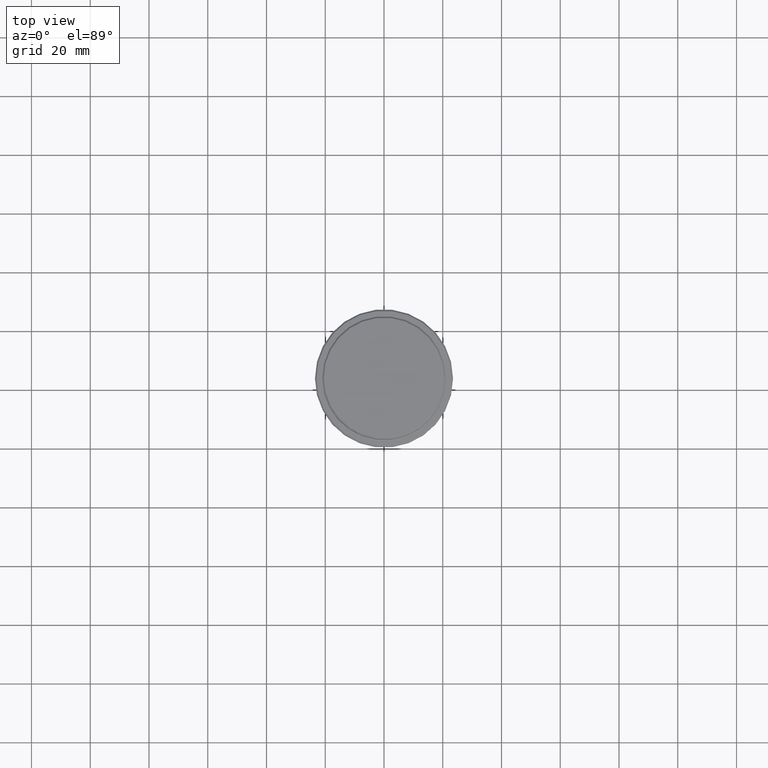
[diagram: clean part render]
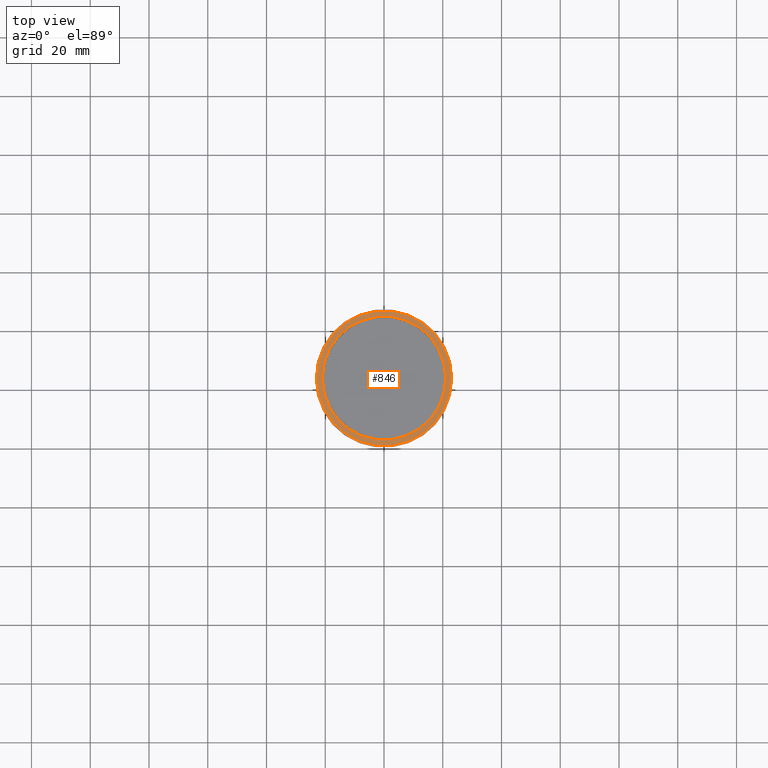
[diagram: same view with one face highlighted and labeled with its STEP entity id]
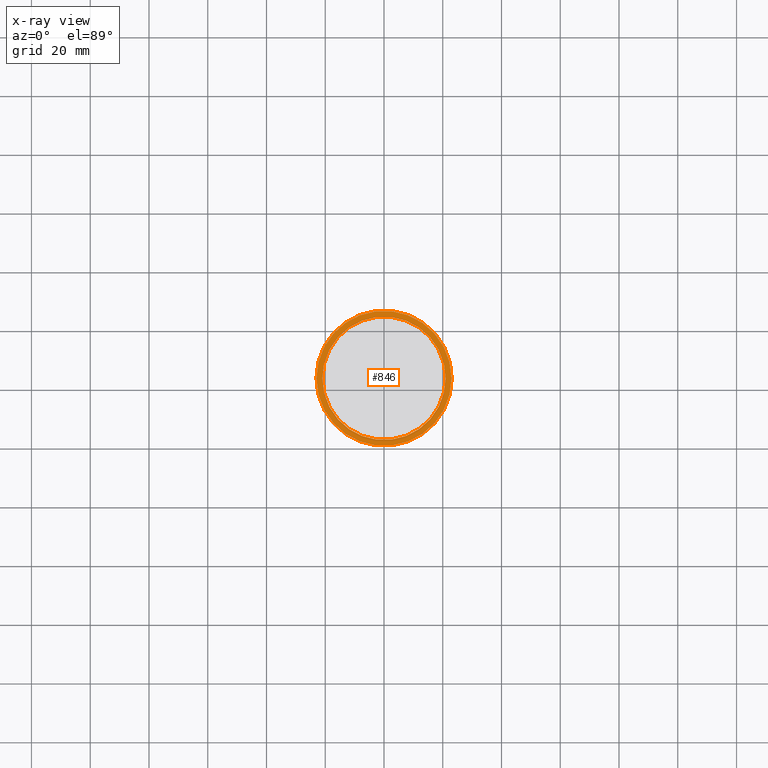
[diagram: x-ray of the same camera — body ghosted, the highlighted face saturated]
A machine part, top view. The second image highlights one B-rep face of the part: STEP entity #846.
The next image is the same camera in x-ray: the body ghosted, the highlighted face saturated — about 0% of this face is hidden behind the body in this view.
In plain terms, the highlighted planar face has unit normal (0, -0, 1).
Its self-contained STEP definition (entity closure, byte-faithful):
#5 = DIRECTION ( 'NONE',  ( 0.000000000000000000, 0.000000000000000000, -1.000000000000000000 ) ) ;
#47 = AXIS2_PLACEMENT_3D ( 'NONE', #1018, #260, #1096 ) ;
#57 = EDGE_CURVE ( 'NONE', #1153, #437, #298, .T. ) ;
#76 = DIRECTION ( 'NONE',  ( 0.000000000000000000, 0.000000000000000000, -1.000000000000000000 ) ) ;
#222 = CARTESIAN_POINT ( 'NONE',  ( 23.00000000000002487, 2.847303808017597717E-15, -9.000000000000001776 ) ) ;
#248 = ORIENTED_EDGE ( 'NONE', *, *, #515, .T. ) ;
#253 = AXIS2_PLACEMENT_3D ( 'NONE', #594, #262, #711 ) ;
#260 = DIRECTION ( 'NONE',  ( 0.000000000000000000, -0.000000000000000000, 1.000000000000000000 ) ) ;
#262 = DIRECTION ( 'NONE',  ( -0.000000000000000000, -0.000000000000000000, 1.000000000000000000 ) ) ;
#288 = DIRECTION ( 'NONE',  ( 1.000000000000000000, 0.000000000000000000, 0.000000000000000000 ) ) ;
#298 = CIRCLE ( 'NONE', #809, 20.99999999999999289 ) ;
#338 = ORIENTED_EDGE ( 'NONE', *, *, #942, .T. ) ;
#347 = CIRCLE ( 'NONE', #531, 20.99999999999999289 ) ;
#355 = CARTESIAN_POINT ( 'NONE',  ( 0.000000000000000000, 0.000000000000000000, -9.000000000000001776 ) ) ;
#386 = CARTESIAN_POINT ( 'NONE',  ( -23.00000000000002487, 0.000000000000000000, -9.000000000000001776 ) ) ;
#397 = ORIENTED_EDGE ( 'NONE', *, *, #57, .T. ) ;
#400 = DIRECTION ( 'NONE',  ( -0.000000000000000000, -0.000000000000000000, 1.000000000000000000 ) ) ;
#435 = CARTESIAN_POINT ( 'NONE',  ( 20.99999999999999289, 0.000000000000000000, -9.000000000000001776 ) ) ;
#437 = VERTEX_POINT ( 'NONE', #1324 ) ;
#515 = EDGE_CURVE ( 'NONE', #1177, #603, #1135, .T. ) ;
#516 = CARTESIAN_POINT ( 'NONE',  ( 0.000000000000000000, 0.000000000000000000, -9.000000000000001776 ) ) ;
#531 = AXIS2_PLACEMENT_3D ( 'NONE', #355, #76, #1145 ) ;
#594 = CARTESIAN_POINT ( 'NONE',  ( 0.000000000000000000, 0.000000000000000000, -9.000000000000001776 ) ) ;
#603 = VERTEX_POINT ( 'NONE', #386 ) ;
#606 = EDGE_LOOP ( 'NONE', ( #1365, #248 ) ) ;
#690 = FACE_OUTER_BOUND ( 'NONE', #606, .T. ) ;
#711 = DIRECTION ( 'NONE',  ( 1.000000000000000000, 0.000000000000000000, 0.000000000000000000 ) ) ;
#739 = EDGE_LOOP ( 'NONE', ( #397, #338 ) ) ;
#809 = AXIS2_PLACEMENT_3D ( 'NONE', #862, #5, #1313 ) ;
#846 = ADVANCED_FACE ( 'NONE', ( #690, #904 ), #1009, .T. ) ;
#862 = CARTESIAN_POINT ( 'NONE',  ( 0.000000000000000000, 0.000000000000000000, -9.000000000000001776 ) ) ;
#904 = FACE_BOUND ( 'NONE', #739, .T. ) ;
#942 = EDGE_CURVE ( 'NONE', #437, #1153, #347, .T. ) ;
#985 = EDGE_CURVE ( 'NONE', #603, #1177, #1088, .T. ) ;
#1009 = PLANE ( 'NONE',  #47 ) ;
#1018 = CARTESIAN_POINT ( 'NONE',  ( 0.000000000000000000, 20.49999999999999645, -9.000000000000001776 ) ) ;
#1088 = CIRCLE ( 'NONE', #1201, 23.00000000000002487 ) ;
#1096 = DIRECTION ( 'NONE',  ( 1.000000000000000000, 0.000000000000000000, 0.000000000000000000 ) ) ;
#1135 = CIRCLE ( 'NONE', #253, 23.00000000000002487 ) ;
#1145 = DIRECTION ( 'NONE',  ( 1.000000000000000000, 0.000000000000000000, 0.000000000000000000 ) ) ;
#1153 = VERTEX_POINT ( 'NONE', #435 ) ;
#1177 = VERTEX_POINT ( 'NONE', #222 ) ;
#1201 = AXIS2_PLACEMENT_3D ( 'NONE', #516, #400, #288 ) ;
#1313 = DIRECTION ( 'NONE',  ( 1.000000000000000000, 0.000000000000000000, 0.000000000000000000 ) ) ;
#1324 = CARTESIAN_POINT ( 'NONE',  ( -20.99999999999999289, 2.571758278209440872E-15, -9.000000000000001776 ) ) ;
#1365 = ORIENTED_EDGE ( 'NONE', *, *, #985, .T. ) ;